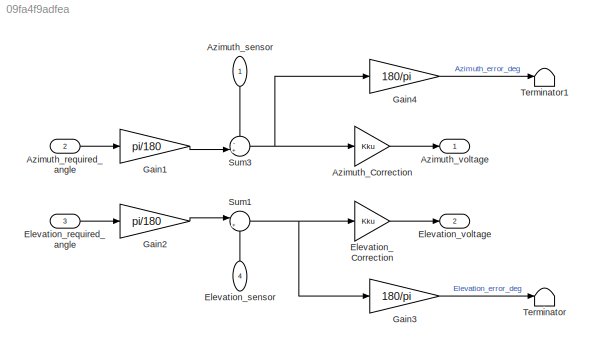
MODEL slx_09fa4f9adfea
KIND model
CONFIG AbsTol = auto
CONFIG EnableMultiTasking = off
CONFIG FixedStep = 0.001
CONFIG MaxStep = auto
CONFIG MinStep = auto
CONFIG RelTol = 1e-3
CONFIG SampleTimeConstraint = Unconstrained
CONFIG SolverName = ode1be
CONFIG StartTime = 0.0
CONFIG StopTime = 10.0
BLOCK [Gain] Azimuth_Correction
  Gain = Kku
BLOCK [Inport] Azimuth_required_angle
  NameLocation = left
  Port = 2
BLOCK [Inport] Azimuth_sensor
  NameLocation = top
BLOCK [Outport] Azimuth_voltage
  NameLocation = right
BLOCK [Gain] Elevation_Correction
  Gain = Kku
BLOCK [Inport] Elevation_required_angle
  NameLocation = left
  Port = 3
BLOCK [Inport] Elevation_sensor
  Port = 4
BLOCK [Outport] Elevation_voltage
  NameLocation = right
  Port = 2
BLOCK [Gain] Gain1
  Gain = pi/180
BLOCK [Gain] Gain2
  Gain = pi/180
BLOCK [Gain] Gain3
  Gain = 180/pi
BLOCK [Gain] Gain4
  Gain = 180/pi
BLOCK [Sum] Sum1
  Inputs = |+-
BLOCK [Sum] Sum3
  Inputs = -+|
BLOCK [Terminator] Terminator
BLOCK [Terminator] Terminator1
LINE Azimuth_Correction:1 -> Azimuth_voltage:1
LINE Azimuth_required_angle:1 -> Gain1:1
LINE Azimuth_sensor:1 -> Sum3:1
LINE Elevation_Correction:1 -> Elevation_voltage:1
LINE Elevation_required_angle:1 -> Gain2:1
LINE Elevation_sensor:1 -> Sum1:2
LINE Gain1:1 -> Sum3:2
LINE Gain2:1 -> Sum1:1
LINE Gain3:1 -> Terminator:1
LINE Gain4:1 -> Terminator1:1
NET Sum1:1 -> Elevation_Correction:1, Gain3:1
NET Sum3:1 -> Azimuth_Correction:1, Gain4:1
note: NET lines group one-source signal fan-out (src -> all destinations, sorted); 1:1 wires keep LINE
